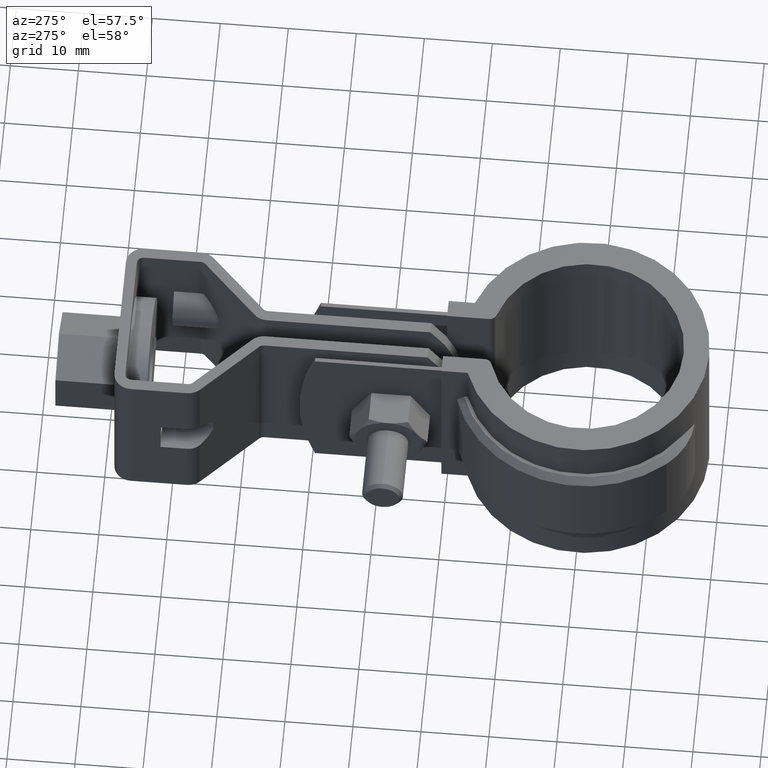
[diagram: clean part render]
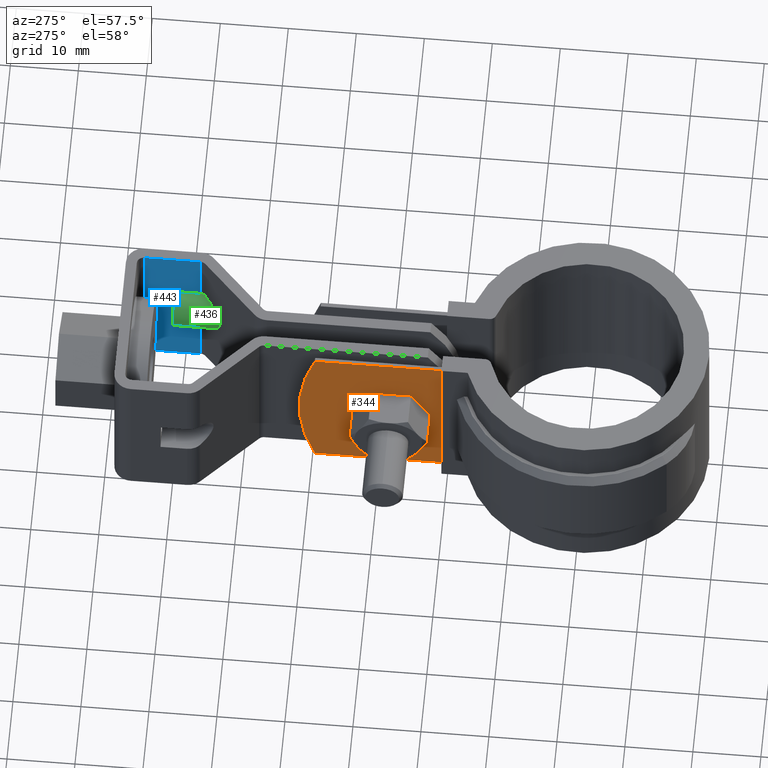
[diagram: same view with three faces highlighted in distinct colors, each labeled with its STEP entity id]
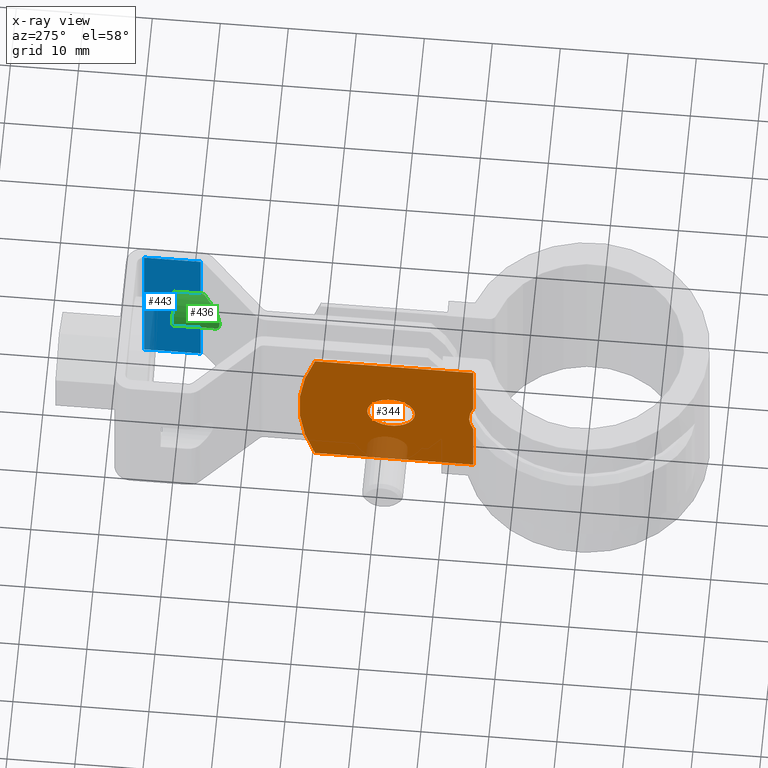
[diagram: x-ray of the same camera — body ghosted, the three highlighted faces saturated]
A machine part, auxiliary view with three faces highlighted in distinct colors.
The next image is the same camera in x-ray (body ghosted, the three faces saturated) — at least one of them is partly hidden behind the body in this view.
Their STEP definitions:

[orange] entity #344 — the highlighted planar face has unit normal (1, -0, 0).
#344 = ADVANCED_FACE( '', ( #582, #583 ), #584, .F. );
#582 = FACE_BOUND( '', #1244, .T. );
#583 = FACE_OUTER_BOUND( '', #1245, .T. );
#584 = PLANE( '', #1246 );
#1244 = EDGE_LOOP( '', ( #2525 ) );
#1245 = EDGE_LOOP( '', ( #2526, #2527, #2528, #2529, #2530, #2531 ) );
#1246 = AXIS2_PLACEMENT_3D( '', #2532, #2533, #2534 );
#2525 = ORIENTED_EDGE( '', *, *, #4741, .F. );
#2526 = ORIENTED_EDGE( '', *, *, #4675, .F. );
#2527 = ORIENTED_EDGE( '', *, *, #4689, .F. );
#2528 = ORIENTED_EDGE( '', *, *, #4647, .F. );
#2529 = ORIENTED_EDGE( '', *, *, #4747, .F. );
#2530 = ORIENTED_EDGE( '', *, *, #4748, .T. );
#2531 = ORIENTED_EDGE( '', *, *, #4749, .F. );
#2532 = CARTESIAN_POINT( '', ( -5.10000000000000, 41.8219465658192, 0.000000000000000 ) );
#2533 = DIRECTION( '', ( 1.00000000000000, -6.12303176911189E-017, 0.000000000000000 ) );
#2534 = DIRECTION( '', ( -6.12303176911189E-017, -1.00000000000000, 0.000000000000000 ) );
#4647 = EDGE_CURVE( '', #5233, #5236, #5237, .T. );
#4675 = EDGE_CURVE( '', #5285, #5279, #5287, .T. );
#4689 = EDGE_CURVE( '', #5236, #5285, #5311, .T. );
#4741 = EDGE_CURVE( '', #5393, #5393, #5394, .F. );
#4747 = EDGE_CURVE( '', #5403, #5233, #5404, .T. );
#4748 = EDGE_CURVE( '', #5403, #5405, #5406, .T. );
#4749 = EDGE_CURVE( '', #5279, #5405, #5407, .T. );
#5233 = VERTEX_POINT( '', #6306 );
#5236 = VERTEX_POINT( '', #6310 );
#5237 = LINE( '', #6311, #6312 );
#5279 = VERTEX_POINT( '', #6491 );
#5285 = VERTEX_POINT( '', #6556 );
#5287 = B_SPLINE_CURVE_WITH_KNOTS( '', 3, ( #6567, #6568, #6569, #6570, #6571, #6572, #6573, #6574, #6575, #6576, #6577, #6578 ), .UNSPECIFIED., .F., .F., ( 4, 2, 2, 2, 2, 4 ), ( 1.73472347597681E-018, 0.00138728214973929, 0.00277456429947858, 0.00416184644921787, 0.00485548752408752, 0.00554912859895716 ), .UNSPECIFIED. );
#5311 = LINE( '', #6652, #6653 );
#5393 = VERTEX_POINT( '', #7061 );
#5394 = CIRCLE( '', #7062, 3.50000000000000 );
#5403 = VERTEX_POINT( '', #7074 );
#5404 = CIRCLE( '', #7075, 35.0000000000000 );
#5405 = VERTEX_POINT( '', #7076 );
#5406 = LINE( '', #7077, #7078 );
#5407 = LINE( '', #7079, #7080 );
#6306 = CARTESIAN_POINT( '', ( -5.09999999999999, 39.5136886423742, 0.000000000000000 ) );
#6310 = CARTESIAN_POINT( '', ( -5.10000000000000, 16.2373058110020, 0.000000000000000 ) );
#6311 = CARTESIAN_POINT( '', ( -5.10000000000000, 41.8219465658192, 0.000000000000000 ) );
#6312 = VECTOR( '', #8895, 1000.00000000000 );
#6491 = CARTESIAN_POINT( '', ( -5.10000000000000, 16.2373058110020, -15.2039350164475 ) );
#6556 = CARTESIAN_POINT( '', ( -5.10000000000000, 16.2373058110020, -9.79606498355247 ) );
#6567 = CARTESIAN_POINT( '', ( -5.10000000000000, 16.2373058110020, -9.79606498355247 ) );
#6568 = CARTESIAN_POINT( '', ( -5.10000000000000, 16.4315927832088, -10.2226285916073 ) );
#6569 = CARTESIAN_POINT( '', ( -5.10000000000000, 16.5789455950492, -10.6618423631813 ) );
#6570 = CARTESIAN_POINT( '', ( -5.10000000000000, 16.7805541732397, -11.5653623515632 ) );
#6571 = CARTESIAN_POINT( '', ( -5.09999999999998, 16.8342213574134, -12.0354553835987 ) );
#6572 = CARTESIAN_POINT( '', ( -5.09999999999998, 16.8344053278858, -12.9621055621992 ) );
#6573 = CARTESIAN_POINT( '', ( -5.10000000000000, 16.7827899506090, -13.4213076710583 ) );
#6574 = CARTESIAN_POINT( '', ( -5.10000000000000, 16.6315029371098, -14.1042211583629 ) );
#6575 = CARTESIAN_POINT( '', ( -5.10000000000000, 16.5685275525493, -14.3306715578696 ) );
#6576 = CARTESIAN_POINT( '', ( -5.10000000000000, 16.4200973172809, -14.7733688072188 ) );
#6577 = CARTESIAN_POINT( '', ( -5.09999999999998, 16.3344383490480, -14.9906772492499 ) );
#6578 = CARTESIAN_POINT( '', ( -5.09999999999998, 16.2373058110020, -15.2039350164475 ) );
#6652 = CARTESIAN_POINT( '', ( -5.10000000000000, 16.2373058110020, 0.000000000000000 ) );
#6653 = VECTOR( '', #8938, 1000.00000000000 );
#7061 = CARTESIAN_POINT( '', ( -5.10000000000000, 31.8219465658192, -12.5000000000000 ) );
#7062 = AXIS2_PLACEMENT_3D( '', #8982, #8983, #8984 );
#7074 = CARTESIAN_POINT( '', ( -5.09999999999999, 39.5136886423742, -25.0000000000000 ) );
#7075 = AXIS2_PLACEMENT_3D( '', #8994, #8995, #8996 );
#7076 = CARTESIAN_POINT( '', ( -5.10000000000000, 16.2373058110020, -25.0000000000000 ) );
#7077 = CARTESIAN_POINT( '', ( -5.10000000000000, 41.8219465658192, -25.0000000000000 ) );
#7078 = VECTOR( '', #8997, 1000.00000000000 );
#7079 = CARTESIAN_POINT( '', ( -5.10000000000000, 16.2373058110020, 0.000000000000000 ) );
#7080 = VECTOR( '', #8998, 1000.00000000000 );
#8895 = DIRECTION( '', ( -6.12303176911189E-017, -1.00000000000000, 0.000000000000000 ) );
#8938 = DIRECTION( '', ( 0.000000000000000, 0.000000000000000, -1.00000000000000 ) );
#8982 = CARTESIAN_POINT( '', ( -5.10000000000000, 28.3219465658192, -12.5000000000000 ) );
#8983 = DIRECTION( '', ( 1.00000000000000, -6.12303176911189E-017, 0.000000000000000 ) );
#8984 = DIRECTION( '', ( 6.12303176911189E-017, 1.00000000000000, 0.000000000000000 ) );
#8994 = CARTESIAN_POINT( '', ( -5.09999999999999, 6.82194656581915, -12.5000000000000 ) );
#8995 = DIRECTION( '', ( 1.00000000000000, -6.12303176911189E-017, 0.000000000000000 ) );
#8996 = DIRECTION( '', ( 6.12303176911189E-017, 1.00000000000000, 0.000000000000000 ) );
#8997 = DIRECTION( '', ( -6.12303176911189E-017, -1.00000000000000, 0.000000000000000 ) );
#8998 = DIRECTION( '', ( 0.000000000000000, 0.000000000000000, -1.00000000000000 ) );

[blue] entity #443 — the highlighted planar face has unit normal (-1, 0, -0).
#443 = ADVANCED_FACE( '', ( #787 ), #788, .T. );
#787 = FACE_OUTER_BOUND( '', #1669, .T. );
#788 = PLANE( '', #1670 );
#1669 = EDGE_LOOP( '', ( #4023, #4024, #4025, #4026, #4027, #4028, #4029, #4030, #4031, #4032 ) );
#1670 = AXIS2_PLACEMENT_3D( '', #4033, #4034, #4035 );
#4023 = ORIENTED_EDGE( '', *, *, #5022, .T. );
#4024 = ORIENTED_EDGE( '', *, *, #5024, .T. );
#4025 = ORIENTED_EDGE( '', *, *, #5026, .T. );
#4026 = ORIENTED_EDGE( '', *, *, #5023, .T. );
#4027 = ORIENTED_EDGE( '', *, *, #5020, .T. );
#4028 = ORIENTED_EDGE( '', *, *, #5038, .F. );
#4029 = ORIENTED_EDGE( '', *, *, #4980, .F. );
#4030 = ORIENTED_EDGE( '', *, *, #5039, .T. );
#4031 = ORIENTED_EDGE( '', *, *, #5040, .T. );
#4032 = ORIENTED_EDGE( '', *, *, #5032, .F. );
#4033 = CARTESIAN_POINT( '', ( 10.6500001128210, 66.0019465680015, 1.85035042843396E-008 ) );
#4034 = DIRECTION( '', ( -1.00000000000000, 7.94778790049312E-010, -3.82133361383914E-011 ) );
#4035 = DIRECTION( '', ( 7.94778790044288E-010, 1.00000000000000, 1.31468003180933E-010 ) );
#4980 = EDGE_CURVE( '', #5786, #5788, #5789, .T. );
#5020 = EDGE_CURVE( '', #5865, #5863, #5866, .F. );
#5022 = EDGE_CURVE( '', #5859, #5867, #5869, .T. );
#5023 = EDGE_CURVE( '', #5851, #5865, #5870, .T. );
#5024 = EDGE_CURVE( '', #5867, #5849, #5871, .T. );
#5026 = EDGE_CURVE( '', #5849, #5851, #5873, .T. );
#5032 = EDGE_CURVE( '', #5859, #5881, #5882, .T. );
#5038 = EDGE_CURVE( '', #5788, #5863, #5890, .T. );
#5039 = EDGE_CURVE( '', #5786, #5891, #5892, .T. );
#5040 = EDGE_CURVE( '', #5891, #5881, #5893, .T. );
#5786 = VERTEX_POINT( '', #8266 );
#5788 = VERTEX_POINT( '', #8268 );
#5789 = LINE( '', #8269, #8270 );
#5849 = VERTEX_POINT( '', #8356 );
#5851 = VERTEX_POINT( '', #8358 );
#5859 = VERTEX_POINT( '', #8374 );
#5863 = VERTEX_POINT( '', #8383 );
#5865 = VERTEX_POINT( '', #8390 );
#5866 = LINE( '', #8391, #8392 );
#5867 = VERTEX_POINT( '', #8393 );
#5869 = LINE( '', #8395, #8396 );
#5870 = LINE( '', #8397, #8398 );
#5871 = LINE( '', #8399, #8400 );
#5873 = LINE( '', #8403, #8404 );
#5881 = VERTEX_POINT( '', #8417 );
#5882 = LINE( '', #8418, #8419 );
#5890 = LINE( '', #8431, #8432 );
#5891 = VERTEX_POINT( '', #8433 );
#5892 = LINE( '', #8434, #8435 );
#5893 = LINE( '', #8436, #8437 );
#8266 = CARTESIAN_POINT( '', ( 10.6500001128210, 66.0019465680015, 1.85035042843396E-008 ) );
#8268 = CARTESIAN_POINT( '', ( 10.6500001062210, 57.6977523368915, 1.74117664730744E-008 ) );
#8269 = CARTESIAN_POINT( '', ( 10.6500001128210, 66.0019465680015, 1.85035042843396E-008 ) );
#8270 = VECTOR( '', #9299, 1000.00000000000 );
#8356 = CARTESIAN_POINT( '', ( 10.6500001098824, 61.6019465699223, -14.6124629995027 ) );
#8358 = CARTESIAN_POINT( '', ( 10.6500001097209, 61.6019465693669, -10.3875369646472 ) );
#8374 = CARTESIAN_POINT( '', ( 10.6500001068491, 57.6977523390525, -16.4373214071102 ) );
#8383 = CARTESIAN_POINT( '', ( 10.6500001065482, 57.6977523380172, -8.56267855806624 ) );
#8390 = CARTESIAN_POINT( '', ( 10.6500001096512, 61.6019465691269, -8.56267855755297 ) );
#8391 = CARTESIAN_POINT( '', ( 10.6500000977295, 46.6019465691272, -8.56267855952497 ) );
#8392 = VECTOR( '', #9369, 1000.00000000000 );
#8393 = CARTESIAN_POINT( '', ( 10.6500001099521, 61.6019465701622, -16.4373214065969 ) );
#8395 = CARTESIAN_POINT( '', ( 10.6500000980304, 46.6019465701624, -16.4373214085690 ) );
#8396 = VECTOR( '', #9373, 1000.00000000000 );
#8397 = CARTESIAN_POINT( '', ( 10.6500001093240, 61.6019465680015, 1.79250503329342E-008 ) );
#8398 = VECTOR( '', #9374, 1000.00000000000 );
#8399 = CARTESIAN_POINT( '', ( 10.6500001093240, 61.6019465680015, 1.79250503329342E-008 ) );
#8400 = VECTOR( '', #9375, 1000.00000000000 );
#8403 = CARTESIAN_POINT( '', ( 10.6500001093240, 61.6019465680015, 1.79250503329342E-008 ) );
#8404 = VECTOR( '', #9377, 1000.00000000000 );
#8417 = CARTESIAN_POINT( '', ( 10.6500001071763, 57.6977523401782, -24.9999999825882 ) );
#8418 = CARTESIAN_POINT( '', ( 10.6500001062210, 57.6977523368915, 1.74117664730744E-008 ) );
#8419 = VECTOR( '', #9383, 1000.00000000000 );
#8431 = CARTESIAN_POINT( '', ( 10.6500001062210, 57.6977523368915, 1.74117664730744E-008 ) );
#8432 = VECTOR( '', #9391, 1000.00000000000 );
#8433 = CARTESIAN_POINT( '', ( 10.6500001137763, 66.0019465712882, -24.9999999814965 ) );
#8434 = CARTESIAN_POINT( '', ( 10.6500001128210, 66.0019465680015, 1.85035042843396E-008 ) );
#8435 = VECTOR( '', #9392, 1000.00000000000 );
#8436 = CARTESIAN_POINT( '', ( 10.6500001137763, 66.0019465712882, -24.9999999814965 ) );
#8437 = VECTOR( '', #9393, 1000.00000000000 );
#9299 = DIRECTION( '', ( -7.94778790044288E-010, -1.00000000000000, -1.31468003180933E-010 ) );
#9369 = DIRECTION( '', ( 7.94778790044288E-010, 1.00000000000000, 1.31468003180933E-010 ) );
#9373 = DIRECTION( '', ( 7.94778790044288E-010, 1.00000000000000, 1.31468003180933E-010 ) );
#9374 = DIRECTION( '', ( -3.82133362428794E-011, -1.31468003150562E-010, 1.00000000000000 ) );
#9375 = DIRECTION( '', ( -3.82133362428794E-011, -1.31468003150562E-010, 1.00000000000000 ) );
#9377 = DIRECTION( '', ( -3.82133362428794E-011, -1.31468003150562E-010, 1.00000000000000 ) );
#9383 = DIRECTION( '', ( 3.82133362428794E-011, 1.31468003150562E-010, -1.00000000000000 ) );
#9391 = DIRECTION( '', ( 3.82133362428794E-011, 1.31468003150562E-010, -1.00000000000000 ) );
#9392 = DIRECTION( '', ( 3.82133362428794E-011, 1.31468003150562E-010, -1.00000000000000 ) );
#9393 = DIRECTION( '', ( -7.94778790044288E-010, -1.00000000000000, -1.31468003180933E-010 ) );

[green] entity #436 — the highlighted cylindrical surface (edge-blend (fillet) strip) has radius 4.25 mm, axis along (-0, -1, -0).
#436 = ADVANCED_FACE( '', ( #773 ), #774, .T. );
#773 = FACE_OUTER_BOUND( '', #1655, .T. );
#774 = CYLINDRICAL_SURFACE( '', #1656, 4.24999999999996 );
#1655 = EDGE_LOOP( '', ( #3966, #3967, #3968, #3969, #3970, #3971 ) );
#1656 = AXIS2_PLACEMENT_3D( '', #3972, #3973, #3974 );
#3966 = ORIENTED_EDGE( '', *, *, #5017, .F. );
#3967 = ORIENTED_EDGE( '', *, *, #5018, .F. );
#3968 = ORIENTED_EDGE( '', *, *, #5019, .F. );
#3969 = ORIENTED_EDGE( '', *, *, #5020, .F. );
#3970 = ORIENTED_EDGE( '', *, *, #5021, .T. );
#3971 = ORIENTED_EDGE( '', *, *, #5022, .F. );
#3972 = CARTESIAN_POINT( '', ( 12.2500001018538, 51.6019465683729, -12.4999999833285 ) );
#3973 = DIRECTION( '', ( -7.94778790044288E-010, -1.00000000000000, -1.31468003180933E-010 ) );
#3974 = DIRECTION( '', ( -3.82343921266954E-011, -1.31468003150545E-010, 1.00000000000000 ) );
#5017 = EDGE_CURVE( '', #5858, #5859, #5860, .T. );
#5018 = EDGE_CURVE( '', #5861, #5858, #5862, .T. );
#5019 = EDGE_CURVE( '', #5863, #5861, #5864, .T. );
#5020 = EDGE_CURVE( '', #5865, #5863, #5866, .F. );
#5021 = EDGE_CURVE( '', #5865, #5867, #5868, .T. );
#5022 = EDGE_CURVE( '', #5859, #5867, #5869, .T. );
#5858 = VERTEX_POINT( '', #8373 );
#5859 = VERTEX_POINT( '', #8374 );
#5860 = B_SPLINE_CURVE_WITH_KNOTS( '', 3, ( #8375, #8376, #8377, #8378, #8379, #8380 ), .UNSPECIFIED., .F., .F., ( 4, 2, 4 ), ( 1.73472347597679E-018, 0.000404290461596237, 0.000808580923192472 ), .UNSPECIFIED. );
#5861 = VERTEX_POINT( '', #8381 );
#5862 = ELLIPSE( '', #8382, 5.93756228945901, 4.24999999999996 );
#5863 = VERTEX_POINT( '', #8383 );
#5864 = B_SPLINE_CURVE_WITH_KNOTS( '', 3, ( #8384, #8385, #8386, #8387, #8388, #8389 ), .UNSPECIFIED., .F., .F., ( 4, 2, 4 ), ( 0.000000000000000, 0.000404110423349703, 0.000808220846699406 ), .UNSPECIFIED. );
#5865 = VERTEX_POINT( '', #8390 );
#5866 = LINE( '', #8391, #8392 );
#5867 = VERTEX_POINT( '', #8393 );
#5868 = CIRCLE( '', #8394, 4.24999999999996 );
#5869 = LINE( '', #8395, #8396 );
#8373 = CARTESIAN_POINT( '', ( 10.3483239418055, 56.9819703747558, -16.3008061821058 ) );
#8374 = CARTESIAN_POINT( '', ( 10.6500001068491, 57.6977523390525, -16.4373214071102 ) );
#8375 = CARTESIAN_POINT( '', ( 10.3483239418055, 56.9819703747558, -16.3008061821058 ) );
#8376 = CARTESIAN_POINT( '', ( 10.4403810066657, 57.0717821410595, -16.3468655486280 ) );
#8377 = CARTESIAN_POINT( '', ( 10.5165798595896, 57.1812274793493, -16.3808533617702 ) );
#8378 = CARTESIAN_POINT( '', ( 10.6216015749618, 57.4261846935242, -16.4260777867918 ) );
#8379 = CARTESIAN_POINT( '', ( 10.6500001067405, 57.5610276656598, -16.4373214071282 ) );
#8380 = CARTESIAN_POINT( '', ( 10.6500001068491, 57.6977523390525, -16.4373214071102 ) );
#8381 = CARTESIAN_POINT( '', ( 10.3483239415150, 56.9819703737565, -8.69919378328188 ) );
#8382 = AXIS2_PLACEMENT_3D( '', #9366, #9367, #9368 );
#8383 = CARTESIAN_POINT( '', ( 10.6500001065482, 57.6977523380172, -8.56267855806624 ) );
#8384 = CARTESIAN_POINT( '', ( 10.6500001065482, 57.6977523380172, -8.56267855806624 ) );
#8385 = CARTESIAN_POINT( '', ( 10.6500001064396, 57.5610765352308, -8.56267855808421 ) );
#8386 = CARTESIAN_POINT( '', ( 10.6217334148014, 57.4266865103778, -8.57386900855297 ) );
#8387 = CARTESIAN_POINT( '', ( 10.5168997563427, 57.1817801468329, -8.61900526199342 ) );
#8388 = CARTESIAN_POINT( '', ( 10.4403732911860, 57.0717746130380, -8.65313827690610 ) );
#8389 = CARTESIAN_POINT( '', ( 10.3483239415150, 56.9819703737565, -8.69919378328188 ) );
#8390 = CARTESIAN_POINT( '', ( 10.6500001096512, 61.6019465691269, -8.56267855755297 ) );
#8391 = CARTESIAN_POINT( '', ( 10.6500000977295, 46.6019465691272, -8.56267855952497 ) );
#8392 = VECTOR( '', #9369, 1000.00000000000 );
#8393 = CARTESIAN_POINT( '', ( 10.6500001099521, 61.6019465701622, -16.4373214065969 ) );
#8394 = AXIS2_PLACEMENT_3D( '', #9370, #9371, #9372 );
#8395 = CARTESIAN_POINT( '', ( 10.6500000980304, 46.6019465701624, -16.4373214085690 ) );
#8396 = VECTOR( '', #9373, 1000.00000000000 );
#9366 = CARTESIAN_POINT( '', ( 12.2500001076043, 58.8372641059454, -12.4999999823773 ) );
#9367 = DIRECTION( '', ( 0.698323834961611, -0.715781965073520, -6.74171421275959E-011 ) );
#9368 = DIRECTION( '', ( 0.715781965073520, 0.698323834961611, 1.19159657042789E-010 ) );
#9369 = DIRECTION( '', ( 7.94778790044288E-010, 1.00000000000000, 1.31468003180933E-010 ) );
#9370 = CARTESIAN_POINT( '', ( 12.2500001098016, 61.6019465683729, -12.4999999820138 ) );
#9371 = DIRECTION( '', ( -7.94778790044288E-010, -1.00000000000000, -1.31468003180933E-010 ) );
#9372 = DIRECTION( '', ( -3.82131672747541E-011, -1.31468003150562E-010, 1.00000000000000 ) );
#9373 = DIRECTION( '', ( 7.94778790044288E-010, 1.00000000000000, 1.31468003180933E-010 ) );